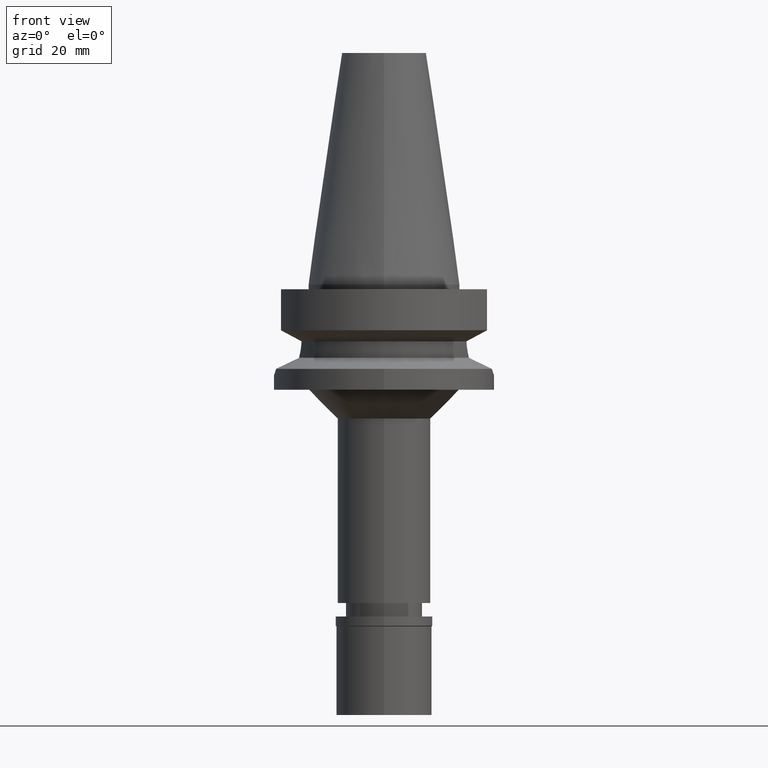
[diagram: clean part render]
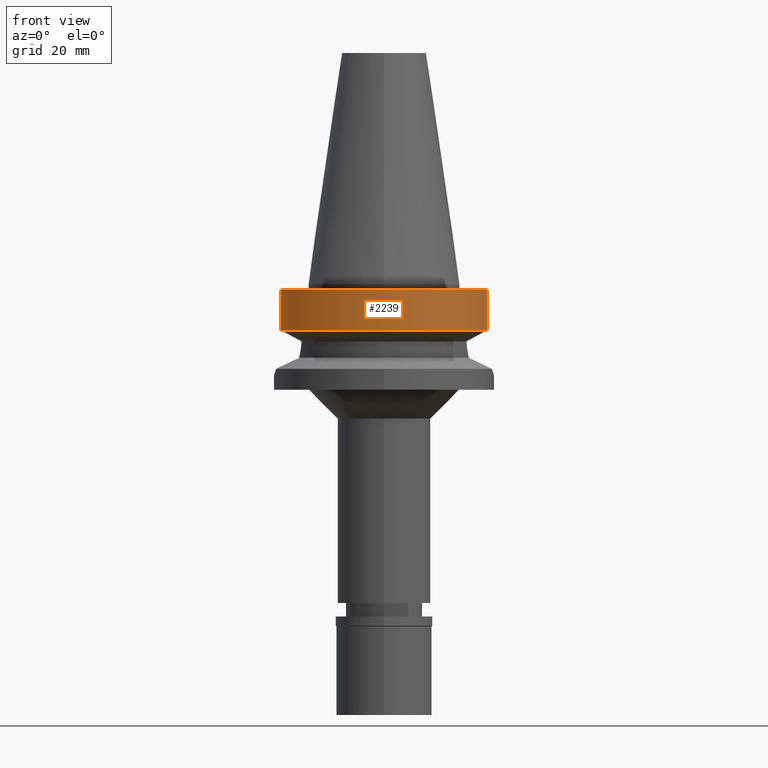
[diagram: same view with one face highlighted and labeled with its STEP entity id]
A machine part, front view. The second image highlights one B-rep face of the part: STEP entity #2239.
In plain terms, the highlighted cylindrical surface (partial cylindrical patch) has radius 23 mm, axis along (0, 0, -1).
Its self-contained STEP definition (entity closure, byte-faithful):
#214 = DIRECTION ( 'NONE',  ( 0.0000000000000000000, 0.0000000000000000000, -1.000000000000000000 ) ) ;
#306 = FACE_OUTER_BOUND ( 'NONE', #2102, .T. ) ;
#325 = DIRECTION ( 'NONE',  ( -9.134800745262689569E-08, -2.444862503416914398E-07, -0.9999999999999659162 ) ) ;
#374 = DIRECTION ( 'NONE',  ( 0.0000000000000000000, 0.0000000000000000000, 1.000000000000000000 ) ) ;
#444 = ORIENTED_EDGE ( 'NONE', *, *, #3009, .F. ) ;
#601 = EDGE_CURVE ( 'NONE', #2388, #776, #2187, .T. ) ;
#650 = VECTOR ( 'NONE', #325, 1000.000000000000114 ) ;
#656 = CARTESIAN_POINT ( 'NONE',  ( 0.0000000000000000000, 1.897222821238999746E-14, -1.000000000000000000 ) ) ;
#686 = CARTESIAN_POINT ( 'NONE',  ( 21.54524309446999908, -8.050000000000000711, -1.000000000000000000 ) ) ;
#776 = VERTEX_POINT ( 'NONE', #2202 ) ;
#882 = AXIS2_PLACEMENT_3D ( 'NONE', #1000, #2908, #1532 ) ;
#1000 = CARTESIAN_POINT ( 'NONE',  ( 0.0000000000000000000, 1.897222821238999746E-14, 54.91999999999999460 ) ) ;
#1126 = DIRECTION ( 'NONE',  ( 0.0000000000000000000, -1.000000000000000000, 0.0000000000000000000 ) ) ;
#1183 = CIRCLE ( 'NONE', #2625, 23.00000000000000000 ) ;
#1239 = CYLINDRICAL_SURFACE ( 'NONE', #882, 23.00000000000000000 ) ;
#1388 = CARTESIAN_POINT ( 'NONE',  ( -21.54524325238000060, -8.049999577366000025, -9.567211146628999074 ) ) ;
#1437 = LINE ( 'NONE', #686, #650 ) ;
#1488 = ORIENTED_EDGE ( 'NONE', *, *, #2902, .T. ) ;
#1532 = DIRECTION ( 'NONE',  ( 0.0000000000000000000, -1.000000000000000000, 0.0000000000000000000 ) ) ;
#1538 = DIRECTION ( 'NONE',  ( 0.0000000000000000000, -1.000000000000000000, 0.0000000000000000000 ) ) ;
#1643 = EDGE_CURVE ( 'NONE', #2388, #2642, #3032, .T. ) ;
#1716 = CARTESIAN_POINT ( 'NONE',  ( 21.54524309446999908, -8.050000000002000888, -9.567208369710998639 ) ) ;
#1940 = ORIENTED_EDGE ( 'NONE', *, *, #601, .F. ) ;
#1948 = CARTESIAN_POINT ( 'NONE',  ( -21.54524325238000060, -8.049999577366000025, -9.567211146628999074 ) ) ;
#2097 = CARTESIAN_POINT ( 'NONE',  ( 21.54524309446999908, -8.050000000000000711, -1.000000000000000000 ) ) ;
#2102 = EDGE_LOOP ( 'NONE', ( #1940, #2891, #444, #1488 ) ) ;
#2187 = LINE ( 'NONE', #1948, #2460 ) ;
#2202 = CARTESIAN_POINT ( 'NONE',  ( -21.54524309446999908, -8.050000000000000711, -1.000000000000000000 ) ) ;
#2239 = ADVANCED_FACE ( 'NONE', ( #306 ), #1239, .T. ) ;
#2241 = CARTESIAN_POINT ( 'NONE',  ( 0.0000000000000000000, 1.093341284896999988E-14, -9.567208369710998639 ) ) ;
#2378 = VERTEX_POINT ( 'NONE', #2097 ) ;
#2388 = VERTEX_POINT ( 'NONE', #1388 ) ;
#2460 = VECTOR ( 'NONE', #2696, 1000.000000000000114 ) ;
#2625 = AXIS2_PLACEMENT_3D ( 'NONE', #656, #214, #1126 ) ;
#2642 = VERTEX_POINT ( 'NONE', #1716 ) ;
#2696 = DIRECTION ( 'NONE',  ( 1.843191671230997693E-08, -4.933165888406983159E-08, 0.9999999999999985567 ) ) ;
#2891 = ORIENTED_EDGE ( 'NONE', *, *, #1643, .T. ) ;
#2902 = EDGE_CURVE ( 'NONE', #2378, #776, #1183, .T. ) ;
#2908 = DIRECTION ( 'NONE',  ( 0.0000000000000000000, 0.0000000000000000000, -1.000000000000000000 ) ) ;
#2924 = AXIS2_PLACEMENT_3D ( 'NONE', #2241, #374, #1538 ) ;
#3009 = EDGE_CURVE ( 'NONE', #2378, #2642, #1437, .T. ) ;
#3032 = CIRCLE ( 'NONE', #2924, 23.00000000000000000 ) ;